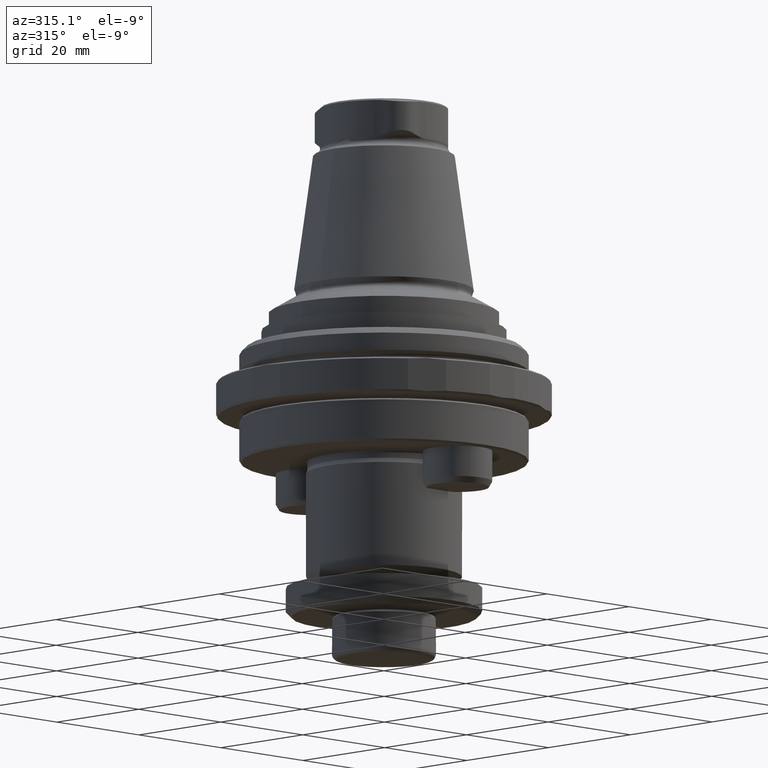
[diagram: clean part render]
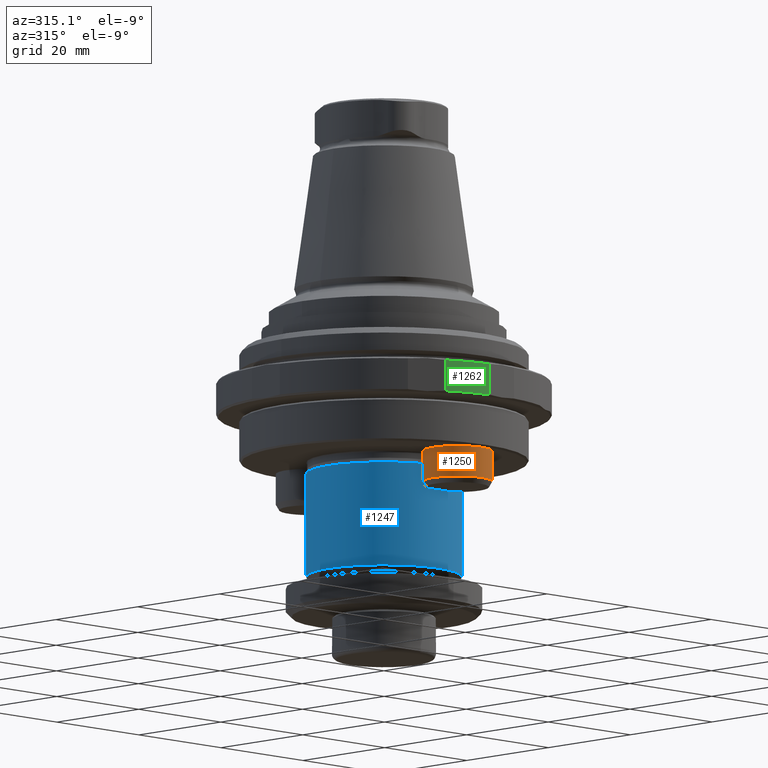
[diagram: same view with three faces highlighted in distinct colors, each labeled with its STEP entity id]
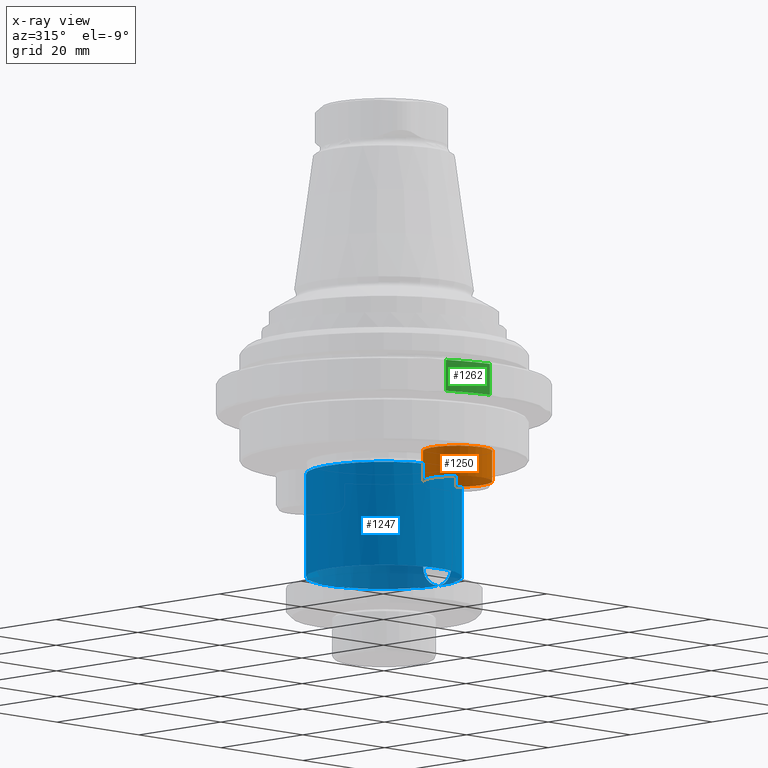
[diagram: x-ray of the same camera — body ghosted, the three highlighted faces saturated]
A machine part, auxiliary view with three faces highlighted in distinct colors.
The next image is the same camera in x-ray (body ghosted, the three faces saturated) — at least one of them is partly hidden behind the body in this view.
Their STEP definitions:

[orange] entity #1250 — the highlighted cylindrical surface (edge-blend (fillet) strip) has radius 6 mm, axis along (0, 0, -1).
#63=CIRCLE('',#1361,6.);
#69=CIRCLE('',#1374,6.00000000000001);
#134=CYLINDRICAL_SURFACE('',#1373,6.00000000000001);
#172=LINE('',#2004,#216);
#173=LINE('',#2005,#217);
#216=VECTOR('',#1589,1000.);
#217=VECTOR('',#1590,1000.);
#310=ORIENTED_EDGE('',*,*,#626,.F.);
#311=ORIENTED_EDGE('',*,*,#628,.T.);
#312=ORIENTED_EDGE('',*,*,#627,.F.);
#313=ORIENTED_EDGE('',*,*,#611,.T.);
#611=EDGE_CURVE('',#778,#777,#63,.T.);
#626=EDGE_CURVE('',#791,#777,#172,.F.);
#627=EDGE_CURVE('',#778,#788,#173,.T.);
#628=EDGE_CURVE('',#791,#788,#69,.F.);
#777=VERTEX_POINT('',#1946);
#778=VERTEX_POINT('',#1947);
#788=VERTEX_POINT('',#1995);
#791=VERTEX_POINT('',#2003);
#966=EDGE_LOOP('',(#310,#311,#312,#313));
#1102=FACE_BOUND('',#966,.T.);
#1250=ADVANCED_FACE('',(#1102),#134,.T.);
#1361=AXIS2_PLACEMENT_3D('',#1948,#1562,#1563);
#1373=AXIS2_PLACEMENT_3D('',#2006,#1591,#1592);
#1374=AXIS2_PLACEMENT_3D('',#2007,#1593,#1594);
#1562=DIRECTION('',(1.22464605849178E-16,2.73472351077882E-63,-1.));
#1563=DIRECTION('',(5.54667823983524E-32,-1.,6.79271764413634E-48));
#1589=DIRECTION('',(1.22464605849178E-16,2.73472351077882E-63,-1.));
#1590=DIRECTION('',(1.22464605849178E-16,2.73472351077882E-63,-1.));
#1591=DIRECTION('',(1.22464605849178E-16,2.73472351077882E-63,-1.));
#1592=DIRECTION('',(5.54667823983524E-32,-1.,6.79271764413634E-48));
#1593=DIRECTION('',(1.22464605849178E-16,2.73472351077882E-63,-1.));
#1594=DIRECTION('',(5.54667823983524E-32,-1.,6.79271764413634E-48));
#1946=CARTESIAN_POINT('',(-4.07921561087425,-13.6,-15.));
#1947=CARTESIAN_POINT('',(4.07921561087425,-13.6,-15.));
#1948=CARTESIAN_POINT('',(2.18482441797314E-15,-18.,-15.));
#1995=CARTESIAN_POINT('',(4.07921561087426,-13.6,-20.3));
#2003=CARTESIAN_POINT('',(-4.07921561087425,-13.6,-20.3));
#2004=CARTESIAN_POINT('',(-4.07921561087425,-13.6,-75.));
#2005=CARTESIAN_POINT('',(4.07921561087427,-13.6,-75.));
#2006=CARTESIAN_POINT('',(9.53270076892382E-15,-18.,-75.));
#2007=CARTESIAN_POINT('',(2.83388682897378E-15,-18.,-20.3));

[blue] entity #1247 — the highlighted cylindrical surface (bore or boss wall) has radius 13.5 mm, axis along (0, 0, -1).
#65=CIRCLE('',#1365,13.5);
#66=CIRCLE('',#1367,13.5);
#133=CYLINDRICAL_SURFACE('',#1369,13.5);
#169=LINE('',#1967,#213);
#170=LINE('',#1980,#214);
#213=VECTOR('',#1580,1000.);
#214=VECTOR('',#1581,1000.);
#294=ORIENTED_EDGE('',*,*,#616,.T.);
#295=ORIENTED_EDGE('',*,*,#617,.T.);
#296=ORIENTED_EDGE('',*,*,#618,.T.);
#297=ORIENTED_EDGE('',*,*,#614,.F.);
#298=ORIENTED_EDGE('',*,*,#619,.T.);
#299=ORIENTED_EDGE('',*,*,#620,.T.);
#300=ORIENTED_EDGE('',*,*,#621,.T.);
#301=ORIENTED_EDGE('',*,*,#613,.T.);
#613=EDGE_CURVE('',#780,#780,#65,.T.);
#614=EDGE_CURVE('',#781,#781,#66,.T.);
#616=EDGE_CURVE('',#780,#783,#888,.T.);
#617=EDGE_CURVE('',#783,#784,#169,.T.);
#618=EDGE_CURVE('',#784,#781,#889,.T.);
#619=EDGE_CURVE('',#781,#785,#890,.T.);
#620=EDGE_CURVE('',#785,#786,#170,.F.);
#621=EDGE_CURVE('',#786,#780,#891,.T.);
#780=VERTEX_POINT('',#1954);
#781=VERTEX_POINT('',#1957);
#783=VERTEX_POINT('',#1966);
#784=VERTEX_POINT('',#1968);
#785=VERTEX_POINT('',#1979);
#786=VERTEX_POINT('',#1981);
#888=B_SPLINE_CURVE_WITH_KNOTS('',3,(#1961,#1962,#1963,#1964,#1965),
 .UNSPECIFIED.,.F.,.F.,(4,1,4),(0.0054962508245808,0.0082412103740246,0.0109861699234684),
 .UNSPECIFIED.);
#889=B_SPLINE_CURVE_WITH_KNOTS('',3,(#1969,#1970,#1971,#1972,#1973),
 .UNSPECIFIED.,.F.,.F.,(4,1,4),(0.,0.0027481254122904,0.0054962508245808),
 .UNSPECIFIED.);
#890=B_SPLINE_CURVE_WITH_KNOTS('',3,(#1974,#1975,#1976,#1977,#1978),
 .UNSPECIFIED.,.F.,.F.,(4,1,4),(0.0054962508245808,0.00824121037402459,
0.0109861699234684),.UNSPECIFIED.);
#891=B_SPLINE_CURVE_WITH_KNOTS('',3,(#1982,#1983,#1984,#1985,#1986),
 .UNSPECIFIED.,.F.,.F.,(4,1,4),(0.,0.0027481254122904,0.0054962508245808),
 .UNSPECIFIED.);
#962=EDGE_LOOP('',(#294,#295,#296,#297,#298,#299,#300,#301));
#1098=FACE_BOUND('',#962,.T.);
#1247=ADVANCED_FACE('',(#1098),#133,.T.);
#1365=AXIS2_PLACEMENT_3D('',#1953,#1570,#1571);
#1367=AXIS2_PLACEMENT_3D('',#1956,#1574,#1575);
#1369=AXIS2_PLACEMENT_3D('',#1960,#1578,#1579);
#1570=DIRECTION('',(1.22464605849178E-16,2.73472351077882E-63,-1.));
#1571=DIRECTION('',(4.31408307542741E-32,1.,5.28322483432827E-48));
#1574=DIRECTION('',(1.22464605849178E-16,2.73472351077882E-63,-1.));
#1575=DIRECTION('',(4.31408307542741E-32,1.,5.28322483432827E-48));
#1578=DIRECTION('',(1.22464605849178E-16,2.73472351077882E-63,-1.));
#1579=DIRECTION('',(4.31408307542741E-32,1.,5.28322483432827E-48));
#1580=DIRECTION('',(1.22464605849178E-16,2.73472351077882E-63,-1.));
#1581=DIRECTION('',(1.22464605849178E-16,2.73472351077882E-63,-1.));
#1953=CARTESIAN_POINT('',(2.42975362967149E-15,7.82697929398972E-31,-17.));
#1954=CARTESIAN_POINT('',(13.5,-2.85954825570023E-16,-17.));
#1956=CARTESIAN_POINT('',(4.6341165349567E-15,7.82697929398972E-31,-35.));
#1957=CARTESIAN_POINT('',(13.5,1.53149949177673E-30,-35.));
#1960=CARTESIAN_POINT('',(6.22565788383615E-15,7.82697929398972E-31,-47.9959292143521));
#1961=CARTESIAN_POINT('',(13.5,-2.96176671215557E-16,-17.));
#1962=CARTESIAN_POINT('',(13.5,0.916837547301279,-17.));
#1963=CARTESIAN_POINT('',(13.2731715638645,2.74156951786945,-17.7647514245225));
#1964=CARTESIAN_POINT('',(13.0384048104053,3.5,-19.5714838842068));
#1965=CARTESIAN_POINT('',(13.0384048104053,3.5,-20.5));
#1966=CARTESIAN_POINT('',(13.0384048104053,3.5,-20.5));
#1967=CARTESIAN_POINT('',(13.0384048104053,3.5,-47.9959292143521));
#1968=CARTESIAN_POINT('',(13.0384048104053,3.5,-31.5));
#1969=CARTESIAN_POINT('',(13.0384048104053,3.5,-31.5));
#1970=CARTESIAN_POINT('',(13.0384048104053,3.5,-32.4295576206072));
#1971=CARTESIAN_POINT('',(13.2736096743823,2.73869103341823,-34.237076709818));
#1972=CARTESIAN_POINT('',(13.5,0.917894969778764,-35.));
#1973=CARTESIAN_POINT('',(13.5,-1.69867871889329E-16,-35.));
#1974=CARTESIAN_POINT('',(13.5,-1.69867871889329E-16,-35.));
#1975=CARTESIAN_POINT('',(13.5,-0.916837547301279,-35.));
#1976=CARTESIAN_POINT('',(13.2731715638645,-2.74156951786944,-34.2352485754775));
#1977=CARTESIAN_POINT('',(13.0384048104053,-3.5,-32.4285161157932));
#1978=CARTESIAN_POINT('',(13.0384048104053,-3.5,-31.5));
#1979=CARTESIAN_POINT('',(13.0384048104053,-3.5,-31.5));
#1980=CARTESIAN_POINT('',(13.0384048104053,-3.5,-47.9959292143521));
#1981=CARTESIAN_POINT('',(13.0384048104053,-3.5,-20.5));
#1982=CARTESIAN_POINT('',(13.0384048104053,-3.5,-20.5));
#1983=CARTESIAN_POINT('',(13.0384048104053,-3.5,-19.5704423793928));
#1984=CARTESIAN_POINT('',(13.2736096743823,-2.73869103341824,-17.762923290182));
#1985=CARTESIAN_POINT('',(13.5,-0.917894969778764,-17.));
#1986=CARTESIAN_POINT('',(13.5,5.71185066772846E-16,-17.));

[green] entity #1262 — the highlighted cylindrical surface (partial cylindrical patch) has radius 29 mm, axis along (0, 0, -1).
#79=CIRCLE('',#1390,29.);
#85=CIRCLE('',#1402,29.);
#138=CYLINDRICAL_SURFACE('',#1401,29.);
#179=LINE('',#2109,#223);
#180=LINE('',#2113,#224);
#223=VECTOR('',#1652,1000.);
#224=VECTOR('',#1657,1000.);
#363=ORIENTED_EDGE('',*,*,#661,.F.);
#364=ORIENTED_EDGE('',*,*,#662,.T.);
#365=ORIENTED_EDGE('',*,*,#642,.T.);
#366=ORIENTED_EDGE('',*,*,#660,.T.);
#642=EDGE_CURVE('',#805,#804,#79,.T.);
#660=EDGE_CURVE('',#804,#817,#179,.T.);
#661=EDGE_CURVE('',#818,#817,#85,.T.);
#662=EDGE_CURVE('',#818,#805,#180,.F.);
#804=VERTEX_POINT('',#2051);
#805=VERTEX_POINT('',#2053);
#817=VERTEX_POINT('',#2108);
#818=VERTEX_POINT('',#2112);
#982=EDGE_LOOP('',(#363,#364,#365,#366));
#1118=FACE_BOUND('',#982,.T.);
#1262=ADVANCED_FACE('',(#1118),#138,.T.);
#1390=AXIS2_PLACEMENT_3D('',#2052,#1625,#1626);
#1401=AXIS2_PLACEMENT_3D('',#2110,#1653,#1654);
#1402=AXIS2_PLACEMENT_3D('',#2111,#1655,#1656);
#1625=DIRECTION('',(1.22464605849178E-16,1.04225259501902E-17,-1.));
#1626=DIRECTION('',(-1.,-5.54667823983524E-32,-1.22464605849178E-16));
#1652=DIRECTION('',(1.22464605849178E-16,1.04225259501902E-17,-1.));
#1653=DIRECTION('',(1.22464605849178E-16,1.04225259501902E-17,-1.));
#1654=DIRECTION('',(-1.,-5.54667823983524E-32,-1.22464605849178E-16));
#1655=DIRECTION('',(1.22464605849178E-16,1.04225259501902E-17,-1.));
#1656=DIRECTION('',(-1.,-5.54667823983524E-32,-1.22464605849178E-16));
#1657=DIRECTION('',(1.22464605849178E-16,1.04225259501902E-17,-1.));
#2051=CARTESIAN_POINT('',(-11.4555136271329,-26.6415316289918,-1.30000000000002));
#2052=CARTESIAN_POINT('',(5.53668419773026E-15,9.69294913367701E-17,-1.30000000000002));
#2053=CARTESIAN_POINT('',(-2.94575966433106,-28.85,-1.30000000000002));
#2108=CARTESIAN_POINT('',(-11.4555136271329,-26.6415316289918,-6.70000000000002));
#2109=CARTESIAN_POINT('',(-11.4555136271329,-26.6415316289918,-1.00000000000002));
#2110=CARTESIAN_POINT('',(5.4999448159755E-15,9.3802733551713E-17,-1.00000000000002));
#2111=CARTESIAN_POINT('',(6.19799306931582E-15,1.53211131467797E-16,-6.70000000000002));
#2112=CARTESIAN_POINT('',(-2.94575966433106,-28.85,-6.70000000000002));
#2113=CARTESIAN_POINT('',(-2.94575966433106,-28.85,-1.00000000000002));